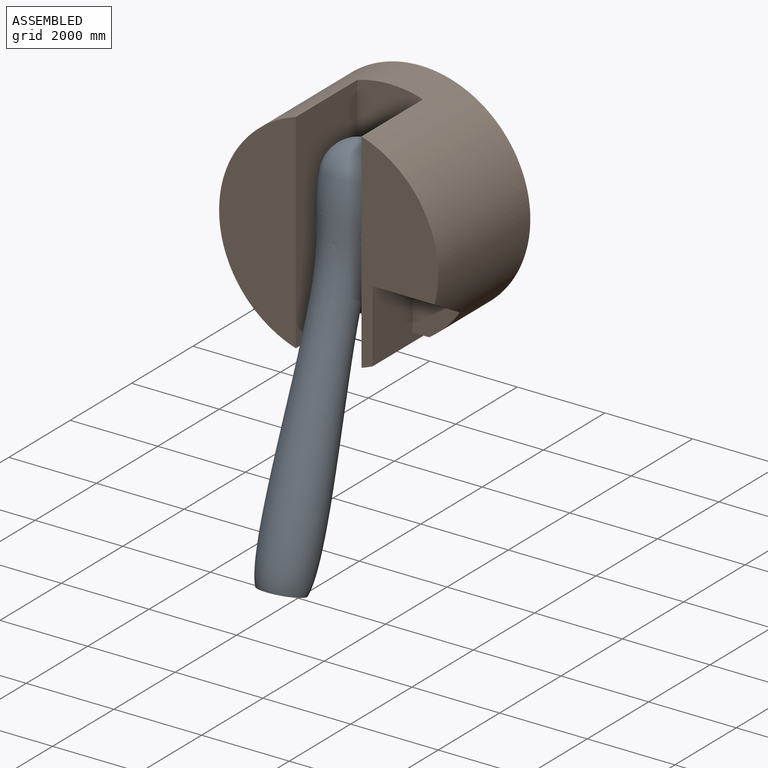
[diagram: assembled view]
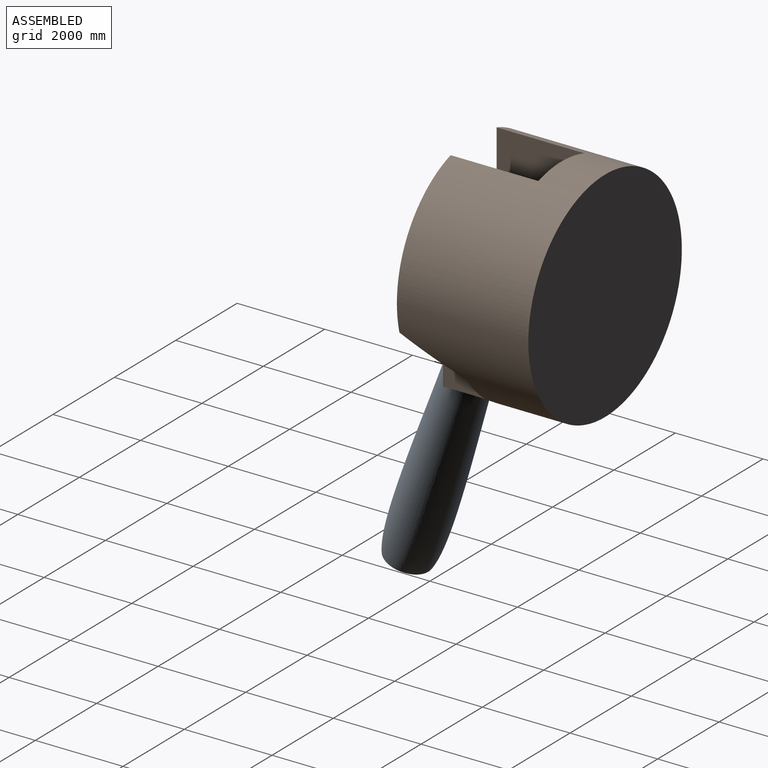
[diagram: assembled view, second angle]
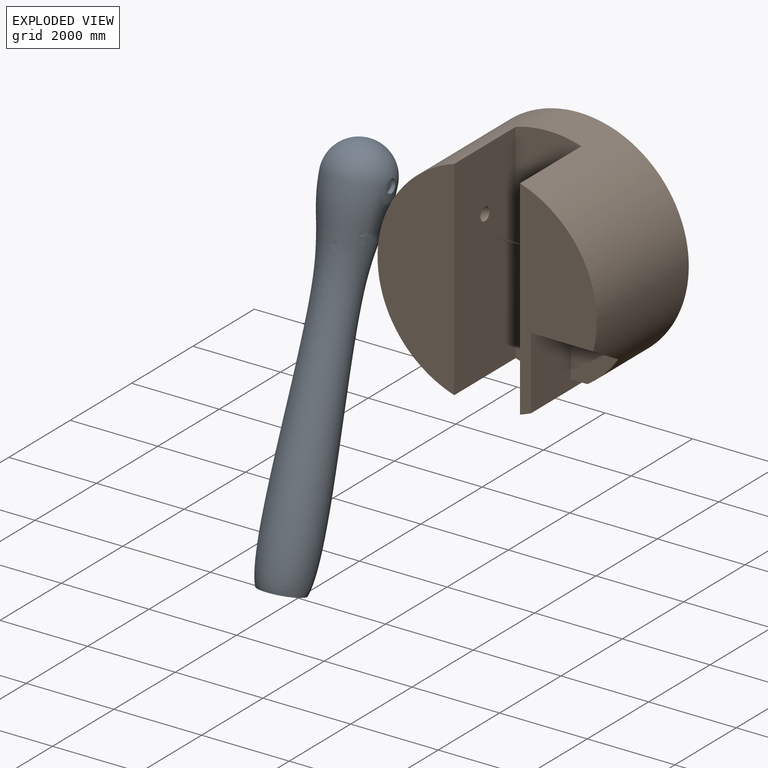
[diagram: exploded view]
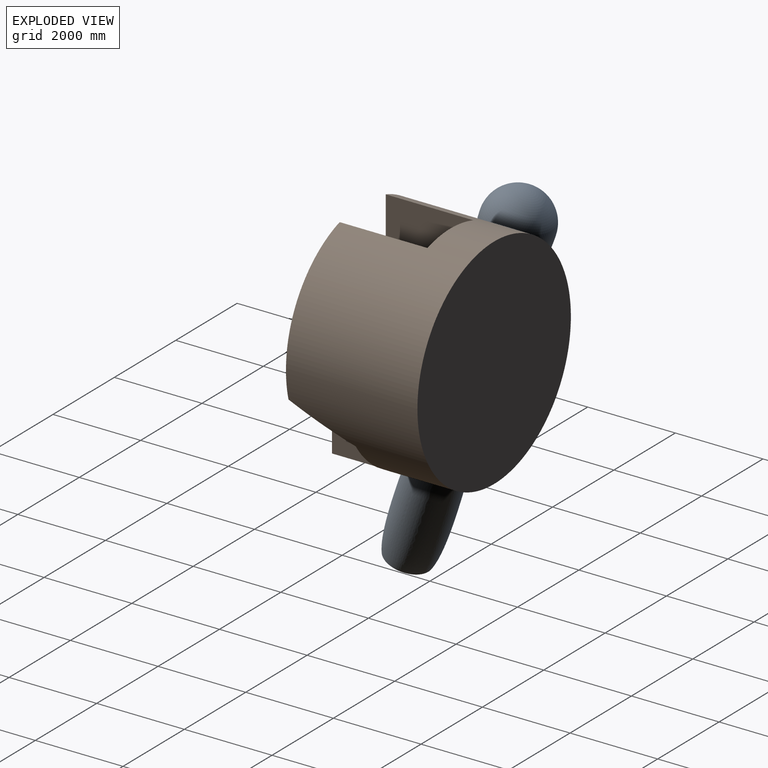
[diagram: exploded view, second angle]
ASSEMBLY  parts=2 mates=2
PART A: 9 faces, bbox 1500x8750x1500 mm
  f0: sphere r=750mm, area 3462884.6mm2, adj f1,f5,f7
  f1: revolved ~8000x1500mm, area 28875389.4mm2, adj f0,f2,f5,f7
  f2: plane 1000x1000mm, normal (0,-1,0), area 282743.3mm2, adj f1,f3
  f3: cylinder r=400mm len=8000mm, axis (0,-1,0), area 20106193mm2, adj f2,f4
  f4: sphere r=400mm, area 1005309.6mm2, adj f3
  f5: cylinder r=150mm len=300mm, axis (1,0,0), area 82883.2mm2, adj f0,f1,f6
  f6: plane 300x300mm, normal (1,0,0), area 70685.8mm2, adj f5
  f7: cylinder r=150mm len=300mm, axis (-1,0,0), area 82885.1mm2, adj f0,f1,f8
  f8: plane 300x300mm, normal (-1,0,0), area 70685.8mm2, adj f7
PART B: 15 faces, bbox 5000x5000x3000 mm
  f0: cylinder r=2500mm len=5000mm, axis (0,0,-1), area 38511751.3mm2, adj f1,f2,f3,f4,f7,f8,f11,f12
  f1: plane 4769.7x1750mm, normal (0,0,1), area 4584818.7mm2, adj f0,f8,f13,f14
  f2: plane 4769.7x2000mm, normal (1,0,0), area 9468706.2mm2, adj f0,f3,f5,f7
  f3: plane 4769.7x1750mm, normal (0,0,1), area 6124512mm2, adj f0,f2
  f4: plane 5000x5000mm, normal (0,0,-1), area 19634954.1mm2, adj f0
  f5: cylinder r=150mm len=500mm, axis (1,0,0), area 471238.9mm2, adj f2,f6
  f6: plane 300x300mm, normal (1,0,0), area 70685.8mm2, adj f5
  f7: plane 5000x1500mm, normal (0,0,1), area 7385930.2mm2, adj f0,f2,f8
  f8: plane 4769.7x2000mm, normal (-1,0,0), area 9468706.2mm2, adj f0,f1,f7,f9
  f9: cylinder r=150mm len=500mm, axis (-1,0,0), area 471238.9mm2, adj f8,f10
  f10: plane 300x300mm, normal (-1,0,0), area 70685.8mm2, adj f9
  f11: plane 481.69x379.64mm, normal (0,-0.92,0.39), area 106322.6mm2, adj f0,f12,f14
  f12: plane 1081.39x700mm, normal (0,0,1), area 544212.7mm2, adj f0,f11,f13,f14
  f13: plane 1417.61x1300mm, normal (0,-0.87,0.5), area 1911448.5mm2, adj f0,f1,f12,f14
  f14: plane 1781.69x1654.77mm, normal (1,0,0), area 1714507.6mm2, adj f0,f1,f11,f12,f13
PLACE A rot(axis=(1,0,0),71.7deg) t=(-15.15,-2629.62,-927.26)mm
PLACE B rot(axis=(1,0,0),90deg) t=(0,0,0)mm
MATE cylindrical A.f5 <-> B.f5  axis (1,0,0) through (634.85,-2000,971.04)mm
MATE planar B.f5 <-> A.f5  axis (1,0,0) through (-750,-2000,971.04)mm
